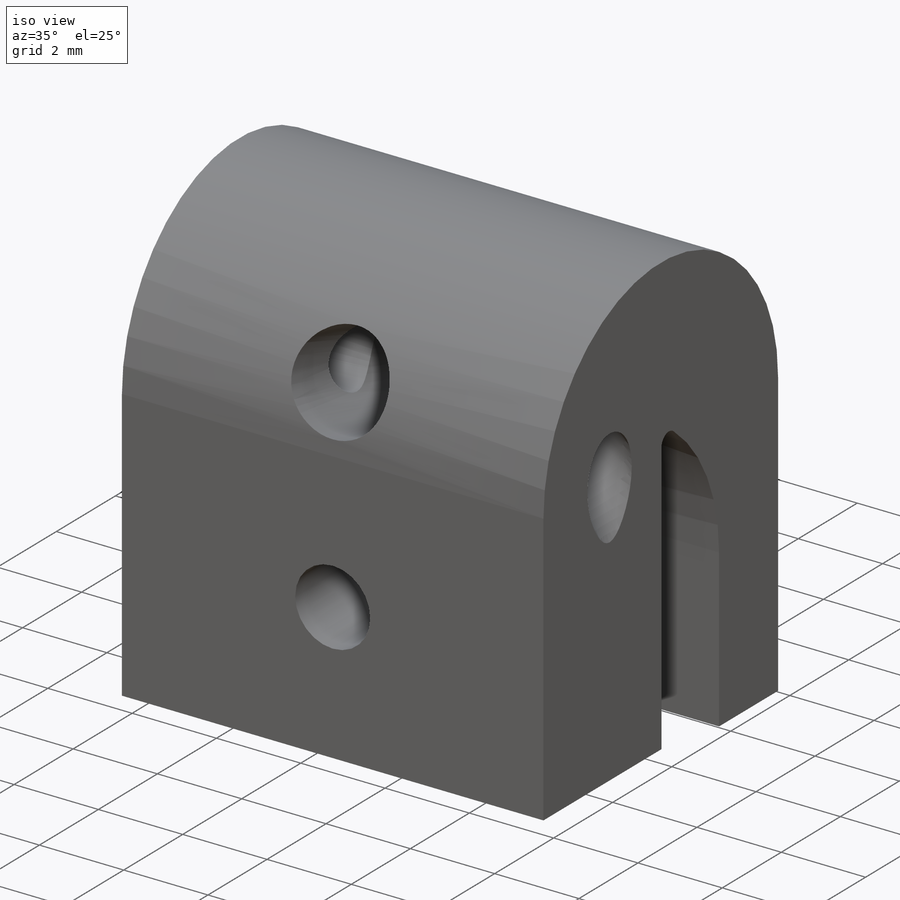
[diagram: iso view]
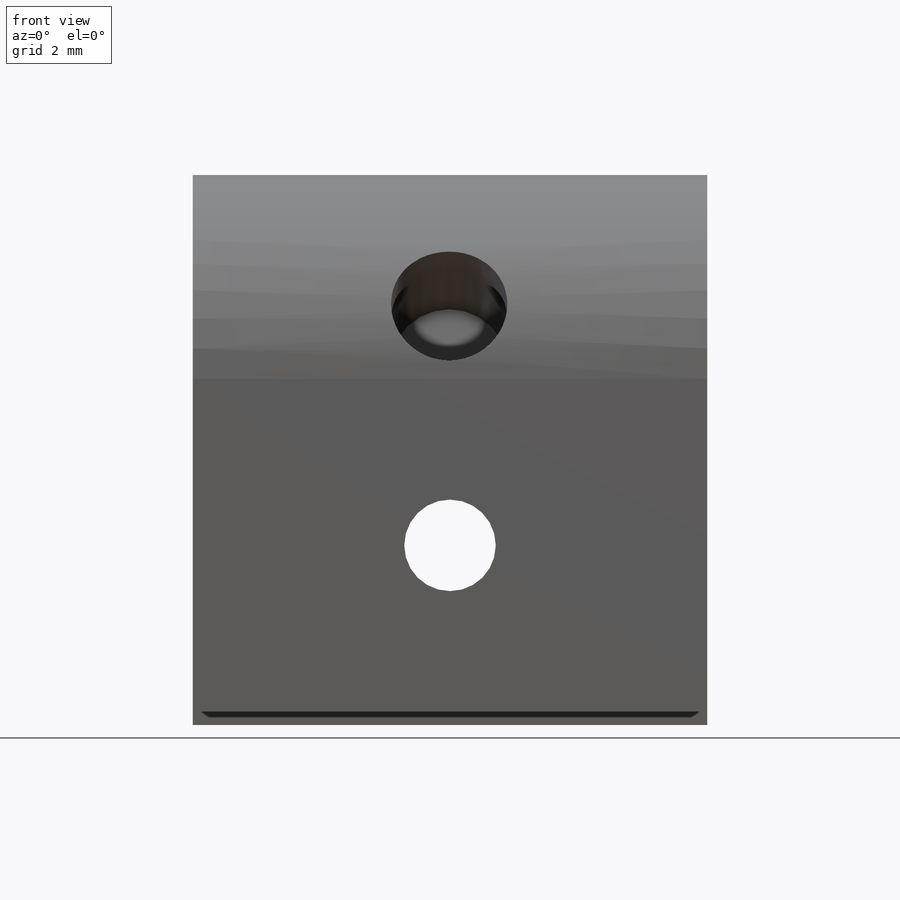
[diagram: front view]
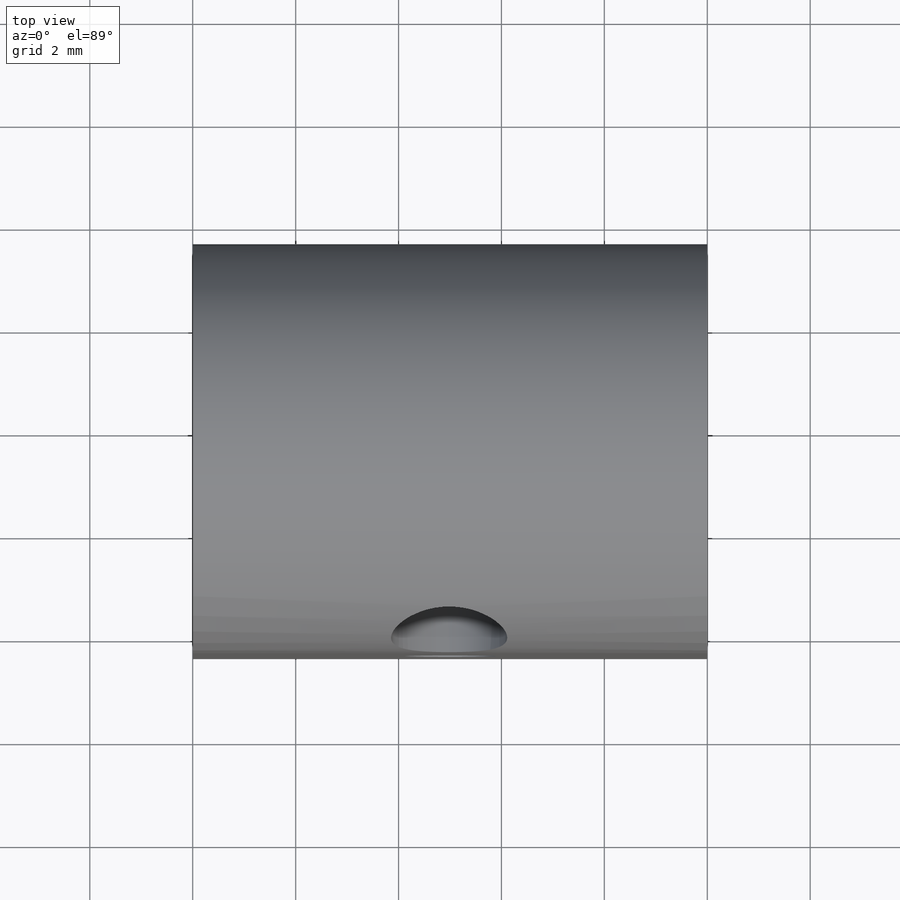
[diagram: top view]
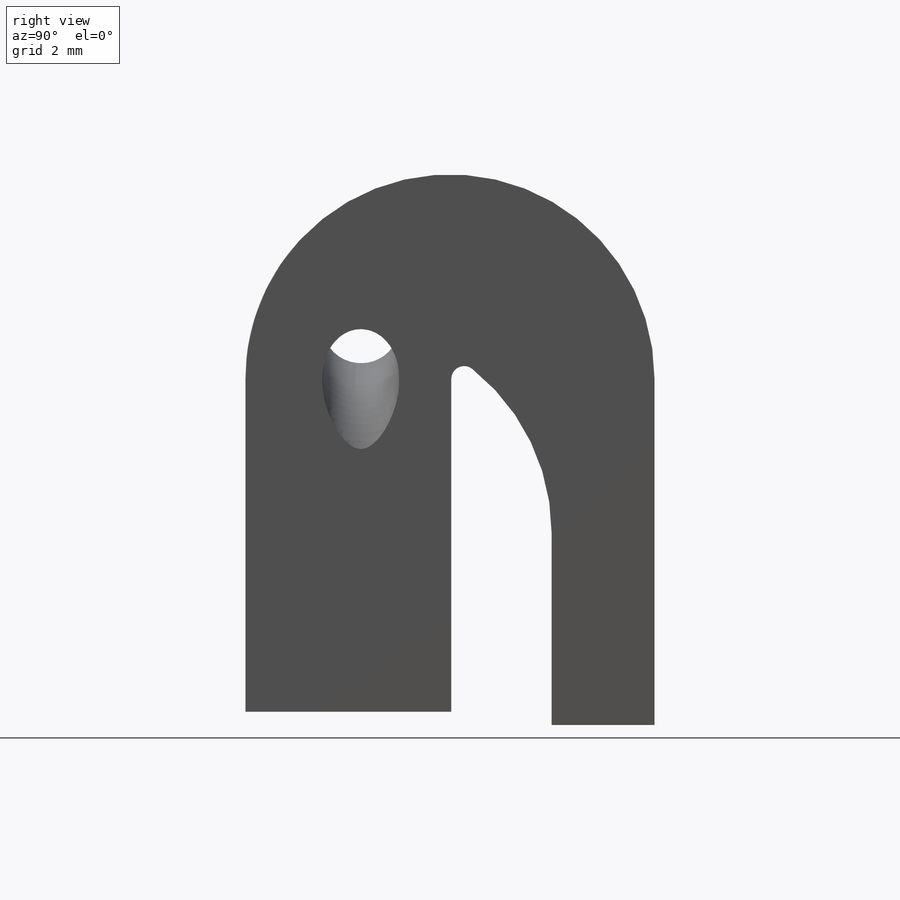
[diagram: right view]
SOLIDWORKS PART (.sldprt)
format: sldprt  version: not decoded by parser v0  size: 446,464 bytes
history: native  units: mm
features: sketch x8, cut_extrude x3, plane x3, material x1, extrude x1, sweep x1 + 1 further entry (+18 scaffold rows collapsed; 3 parser-record rows omitted)
feature tree (39):
  scaffold x18  (default folders/planes/origin — collapsed)
  material  "Material <not specified>"
  "wheel_handle_body_slider v-3 01-Nov-2017"
  parser-record x3  (decoder bookkeeping rows leaked as tree rows — omitted from the tree; the rows remain in map.json)
  sketch  "Sketch1"  dims[c1.D1=7.9375mm c1.D2=0.25mm c1.D4=~3.55238mm c1.D5=1.5mm c1.D6=5.0mm c1.D7=1.0mm c2.D6=3.975mm c2.D1=~0.074182mm c2.D3=4.0mm c2.D4=2.0mm c3.D6=~5.646809mm c3.D8=~0.131029mm c4.D6=~0.080727mm c4.D1=0.1mm c4.D3=2.0mm]
  sketch  "Sketch2"  dims[D1=2.0mm]
  extrude  "Boss-Extrude1"  Depth=10mm
  sketch  "Sketch3"  dims[D1=~1.820007mm]
  cut_extrude  "Cut-Extrude1"  [1 undecoded]
  sketch  "Sketch11"  dims[D1=2.5mm]
  cut_extrude  "Cut-Extrude4"  [1 undecoded]
  plane  "Plane1"
  sketch  "Sketch6"  dims[D1=~2.565057mm]
  cut_extrude  "Cut-Extrude3"  Depth=5mm
  plane  "Plane2"
  sketch  "Sketch7"  dims[c1.D1=5.0mm c1.D2=5.0mm c1.D3=2.5mm c2.D2=~0.083799mm c2.D3=~1.403224mm c3.D3=45.0deg]
  sketch  "Sketch8"
  plane  "Plane3"
  sketch  "Sketch9"  dims[D1=1.5mm]
  sweep  "Cut-Sweep10"
decode coverage: 9 of 13 modeling features carry decoded parameters; 1 rows unclassified (native names shown)
note: ~ marks probable driven/reference dimensions
note: 2 parameter values undecoded
note: suppression state not decoded; provenance and decode notes live in map.json
